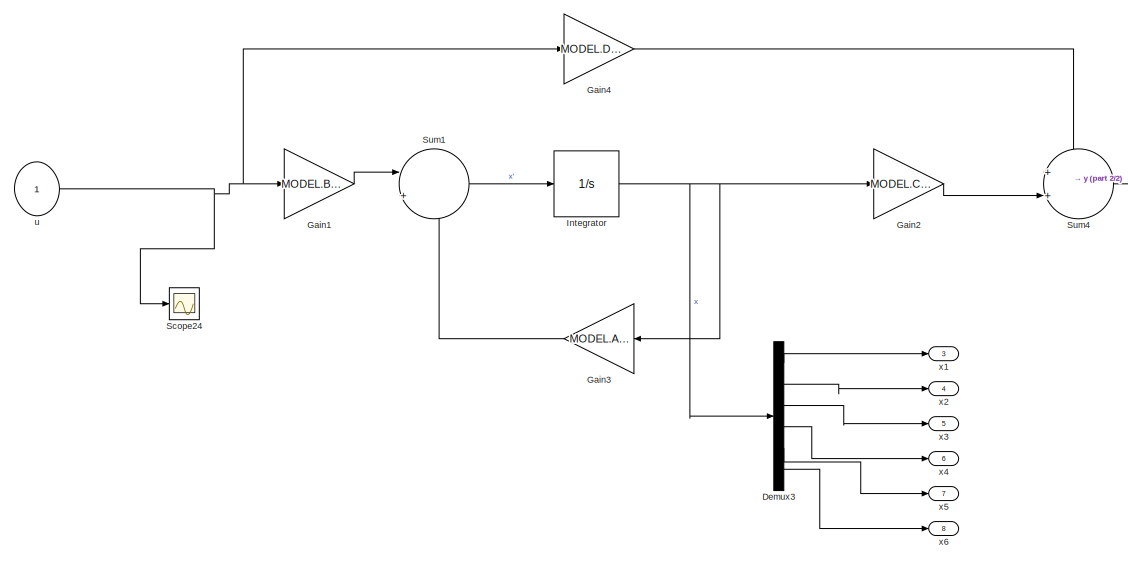
[diagram: root canvas - part 1/2, left side, full height]
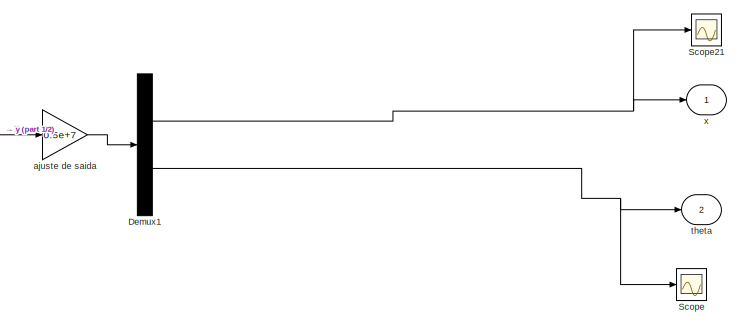
[diagram: root canvas - part 2/2, middle right region]
MODEL slx_83b681935541
KIND model
CONFIG AbsTol = auto
CONFIG EnableMultiTasking = off
CONFIG FixedStep = 0.0005
CONFIG MaxStep = auto
CONFIG MinStep = auto
CONFIG RelTol = 1e-6
CONFIG SampleTimeConstraint = Unconstrained
CONFIG SolverName = ode45
CONFIG StartTime = 0.0
CONFIG StopTime = 200
BLOCK [Demux] Demux1
  Outputs = 2
BLOCK [Demux] Demux3
  Outputs = 6
BLOCK [Gain] Gain1
  Gain = MODEL.B_ctr
  Multiplication = Matrix(K*u)
BLOCK [Gain] Gain2
  Gain = MODEL.C_aug
  Multiplication = Matrix(K*u)
BLOCK [Gain] Gain3
  Gain = MODEL.A_exp
  Multiplication = Matrix(K*u)
  NameLocation = top
BLOCK [Gain] Gain4
  Gain = MODEL.D_aug
  Multiplication = Matrix(K*u)
BLOCK [Integrator] Integrator
BLOCK [Scope] Scope
  Floating = off
  NumInputPorts = 1
  ScopeSpecificationString = Simulink.scopes.TimeScopeBlockCfg('CurrentConfiguration', extmgr.ConfigurationSet(extmgr.Configuration('Core','General UI',true),extmgr.Configuration('Core','Source UI',true),extmgr.Configuration('Sources','WiredSimulink',true,'DataLoggingVariableName','ScopeData1'),extmgr.Configuration('Visuals','Time Domain',true,'SerializedDisplays',{struct('MinYLimReal','-0.0016','MaxYLimReal','0.0074','YLabel...<+1450ch>
BLOCK [Scope] Scope21
  Floating = off
  NumInputPorts = 1
  ScopeSpecificationString = Simulink.scopes.TimeScopeBlockCfg('CurrentConfiguration', extmgr.ConfigurationSet(extmgr.Configuration('Core','General UI',true),extmgr.Configuration('Core','Source UI',true),extmgr.Configuration('Sources','WiredSimulink',true,'DataLoggingVariableName','ScopeData7'),extmgr.Configuration('Visuals','Time Domain',true,'SerializedDisplays',{struct('MinYLimReal','-5.11953','MaxYLimReal','7.01484','YLab...<+1531ch>
BLOCK [Scope] Scope24
  Floating = off
  NumInputPorts = 1
  ScopeSpecificationString = Simulink.scopes.TimeScopeBlockCfg('CurrentConfiguration', extmgr.ConfigurationSet(extmgr.Configuration('Core','General UI',true),extmgr.Configuration('Core','Source UI',true),extmgr.Configuration('Sources','WiredSimulink',true,'DataLoggingVariableName','ScopeData8'),extmgr.Configuration('Visuals','Time Domain',true,'SerializedDisplays',{struct('MinYLimReal','-0.17965','MaxYLimReal','0.87967','YLab...<+1485ch>
BLOCK [Sum] Sum1
  Inputs = |++
BLOCK [Sum] Sum4
  Inputs = ++|
BLOCK [Gain] ajuste de saida
  Gain = 0.5e+7
BLOCK [Outport] theta
  Port = 2
  VectorParamsAs1DForOutWhenUnconnected = off
BLOCK [Inport] u
BLOCK [Outport] x
  VectorParamsAs1DForOutWhenUnconnected = off
BLOCK [Outport] x1
  Port = 3
BLOCK [Outport] x2
  Port = 4
BLOCK [Outport] x3
  Port = 5
BLOCK [Outport] x4
  Port = 6
BLOCK [Outport] x5
  Port = 7
BLOCK [Outport] x6
  Port = 8
NET Demux1:1 -> Scope21:1, x:1
NET Demux1:2 -> Scope:1, theta:1
LINE Demux3:1 -> x1:1
LINE Demux3:2 -> x2:1
LINE Demux3:3 -> x3:1
LINE Demux3:4 -> x4:1
LINE Demux3:5 -> x5:1
LINE Demux3:6 -> x6:1
LINE Gain1:1 -> Sum1:1
LINE Gain2:1 -> Sum4:2
LINE Gain3:1 -> Sum1:2
LINE Gain4:1 -> Sum4:1
NET Integrator:1 -> Demux3:1, Gain2:1, Gain3:1
LINE Sum1:1 -> Integrator:1
LINE Sum4:1 -> ajuste de saida:1
LINE ajuste de saida:1 -> Demux1:1
NET u:1 -> Gain1:1, Gain4:1, Scope24:1
note: NET lines group one-source signal fan-out (src -> all destinations, sorted); 1:1 wires keep LINE
